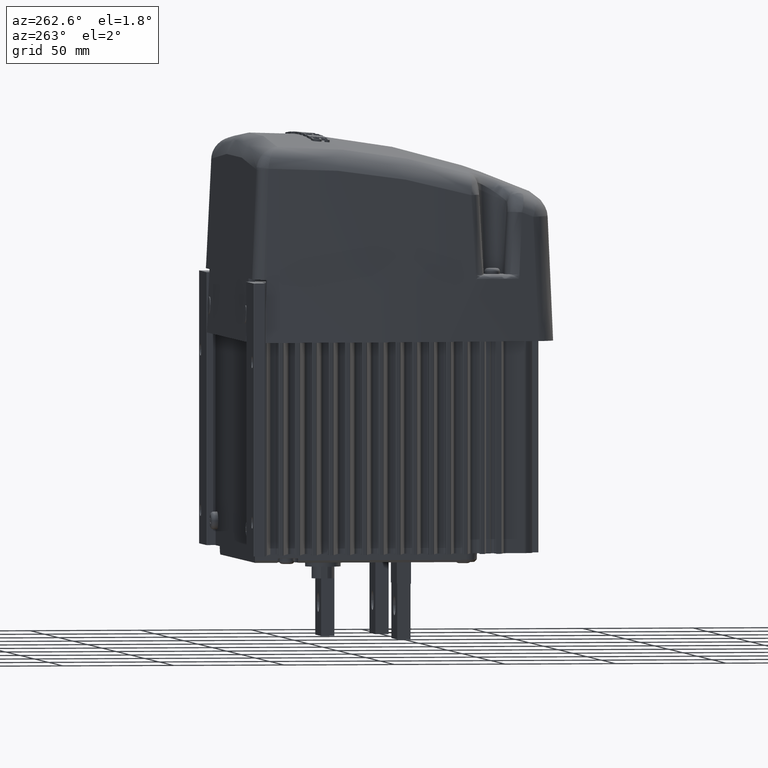
[diagram: clean part render]
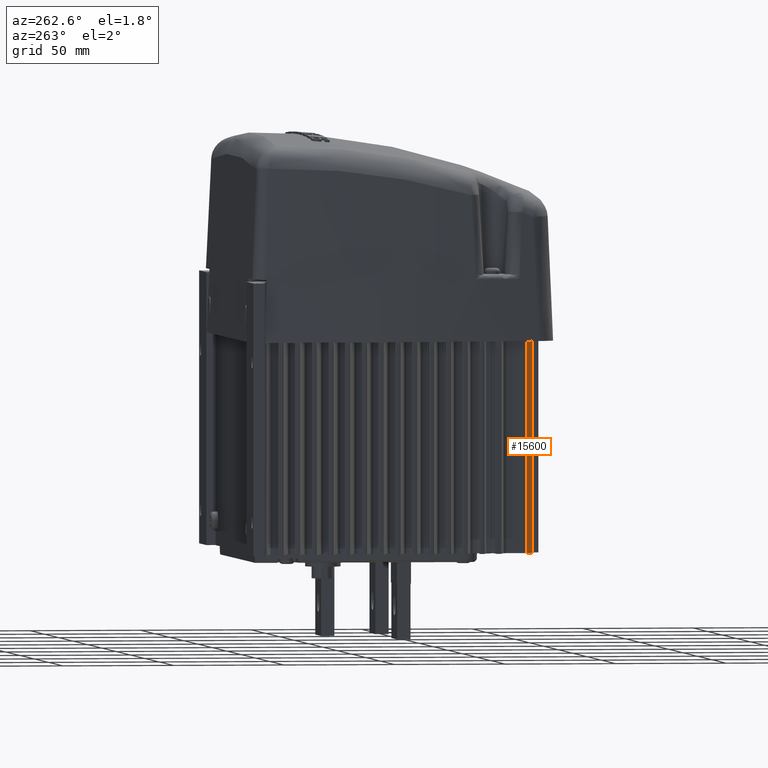
[diagram: same view with one face highlighted and labeled with its STEP entity id]
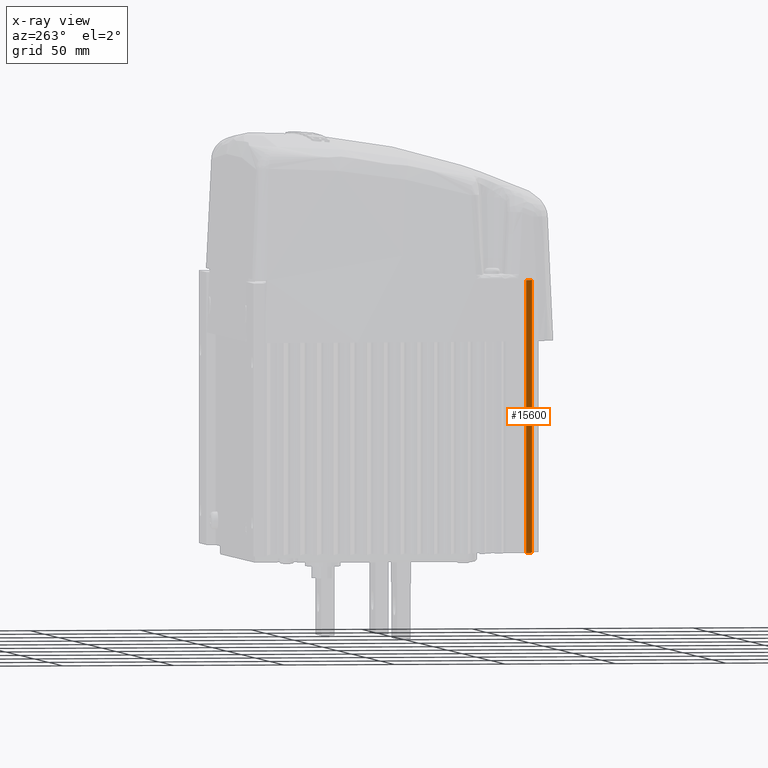
[diagram: x-ray of the same camera — body ghosted, the highlighted face saturated]
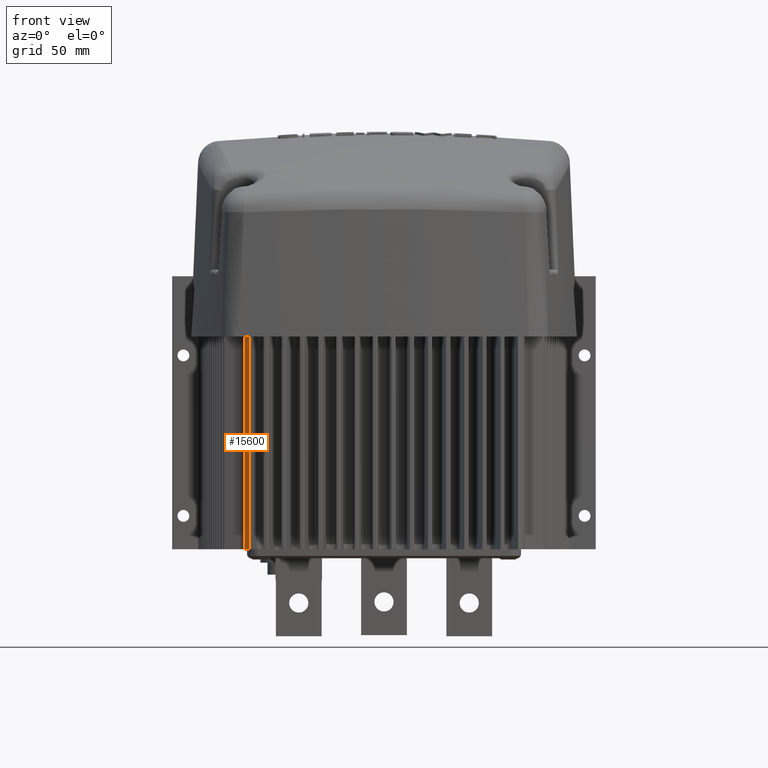
[diagram: same view with one face highlighted and labeled with its STEP entity id]
A machine part, auxiliary view. The second image highlights one B-rep face of the part: STEP entity #15600.
The next image is the same camera in x-ray: the body ghosted, the highlighted face saturated — about 0% of this face is hidden behind the body in this view.
A second angle (front view) of the same face is appended — the face is thin or edge-on in the first view.
In plain terms, the highlighted cylindrical surface (edge-blend (fillet) strip) has radius 13.212 mm, axis along (0, 0, 1).
Its self-contained STEP definition (entity closure, byte-faithful):
#1976=LINE('',#26388,#3079);
#1977=LINE('',#26390,#3080);
#3079=VECTOR('',#20141,122.499999999999);
#3080=VECTOR('',#20144,122.499999999999);
#4218=FACE_OUTER_BOUND('',#5121,.T.);
#5121=EDGE_LOOP('',(#12300,#12301,#12302,#12303));
#5984=CIRCLE('',#16485,13.2119950931916);
#6323=CIRCLE('',#16857,13.2119950931916);
#7100=VERTEX_POINT('',#24055);
#7101=VERTEX_POINT('',#24057);
#7640=VERTEX_POINT('',#25777);
#7641=VERTEX_POINT('',#25779);
#8620=EDGE_CURVE('',#7100,#7101,#5984,.T.);
#9196=EDGE_CURVE('',#7641,#7640,#6323,.T.);
#9484=EDGE_CURVE('',#7641,#7100,#1976,.T.);
#9485=EDGE_CURVE('',#7640,#7101,#1977,.T.);
#12300=ORIENTED_EDGE('',*,*,#9196,.T.);
#12301=ORIENTED_EDGE('',*,*,#9485,.T.);
#12302=ORIENTED_EDGE('',*,*,#8620,.F.);
#12303=ORIENTED_EDGE('',*,*,#9484,.F.);
#15168=CYLINDRICAL_SURFACE('',#17078,13.2119950931916);
#15600=ADVANCED_FACE('',(#4218),#15168,.T.);
#16485=AXIS2_PLACEMENT_3D('',#24058,#18549,#18550);
#16857=AXIS2_PLACEMENT_3D('',#25780,#19504,#19505);
#17078=AXIS2_PLACEMENT_3D('',#26389,#20142,#20143);
#18549=DIRECTION('center_axis',(4.16333634234434E-17,3.46944695195356E-18,
1.));
#18550=DIRECTION('ref_axis',(-0.878205154578534,-0.478284127346595,3.82220157686998E-17));
#19504=DIRECTION('center_axis',(4.16333634234434E-17,3.46944695195356E-18,
1.));
#19505=DIRECTION('ref_axis',(-0.878205154578534,-0.478284127346595,3.82220157686998E-17));
#20141=DIRECTION('',(4.16333634234434E-17,3.46944695195356E-18,1.));
#20142=DIRECTION('center_axis',(4.16333634234434E-17,3.46944695195356E-18,
1.));
#20143=DIRECTION('ref_axis',(-0.878205154578534,-0.478284127346595,3.82220157686998E-17));
#20144=DIRECTION('',(4.16333634234434E-17,3.46944695195356E-18,1.));
#24055=CARTESIAN_POINT('',(34.5597009957423,16.529821164594,161.521374530365));
#24057=CARTESIAN_POINT('',(36.770422837673,13.5567136149708,161.521374530365));
#24058=CARTESIAN_POINT('Origin',(46.1625431888495,22.8489087082486,161.521374530365));
#25777=CARTESIAN_POINT('',(36.770422837673,13.5567136149708,39.0213745303655));
#25779=CARTESIAN_POINT('',(34.5597009957423,16.529821164594,39.0213745303655));
#25780=CARTESIAN_POINT('Origin',(46.1625431888495,22.8489087082486,39.0213745303655));
#26388=CARTESIAN_POINT('',(34.5597009957423,16.529821164594,39.0213745303655));
#26389=CARTESIAN_POINT('Origin',(46.1625431888495,22.8489087082486,39.0213745303655));
#26390=CARTESIAN_POINT('',(36.770422837673,13.5567136149708,39.0213745303655));